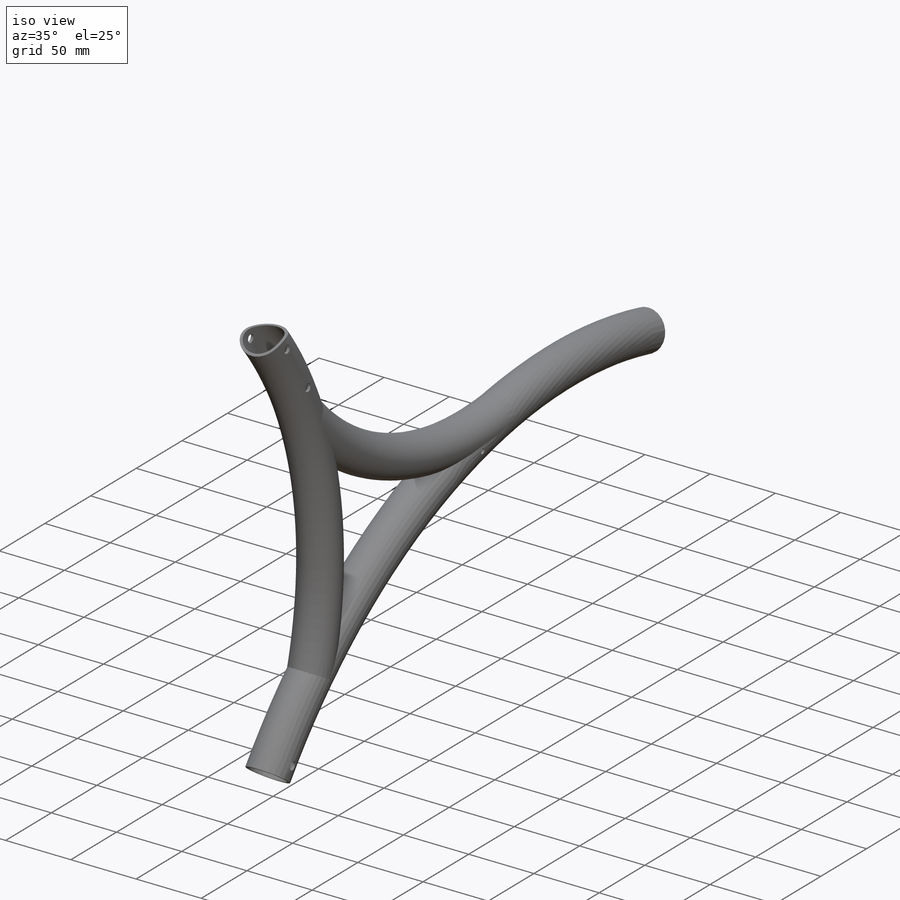
[diagram: iso view]
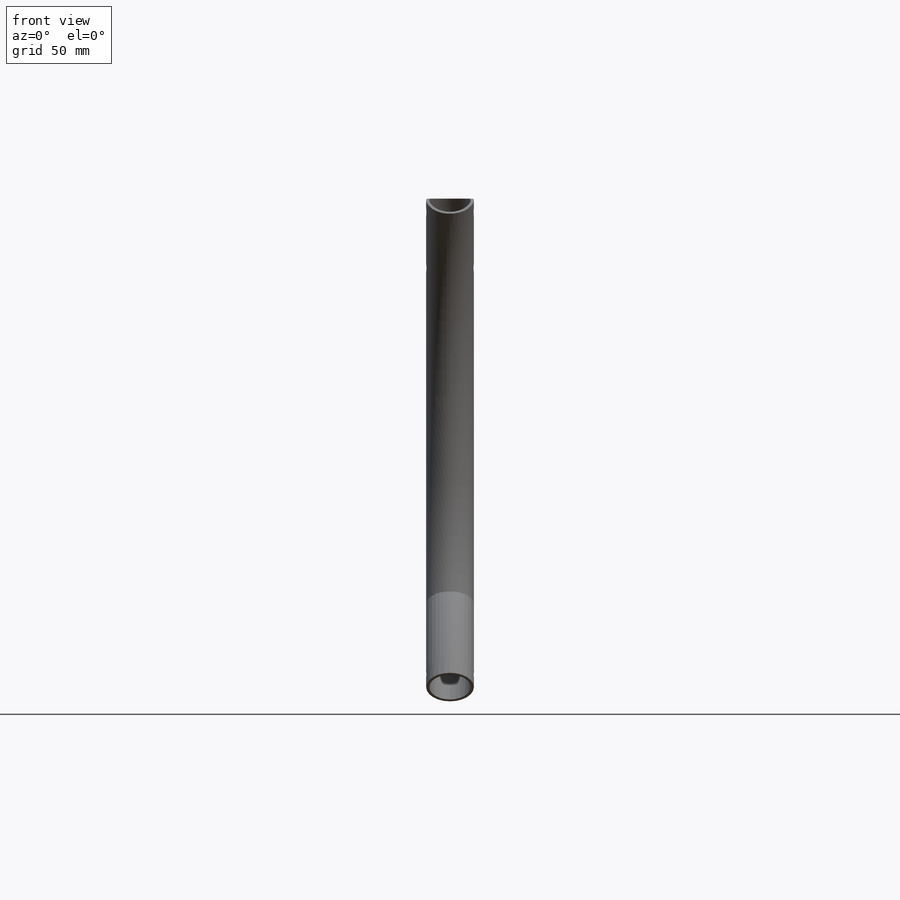
[diagram: front view]
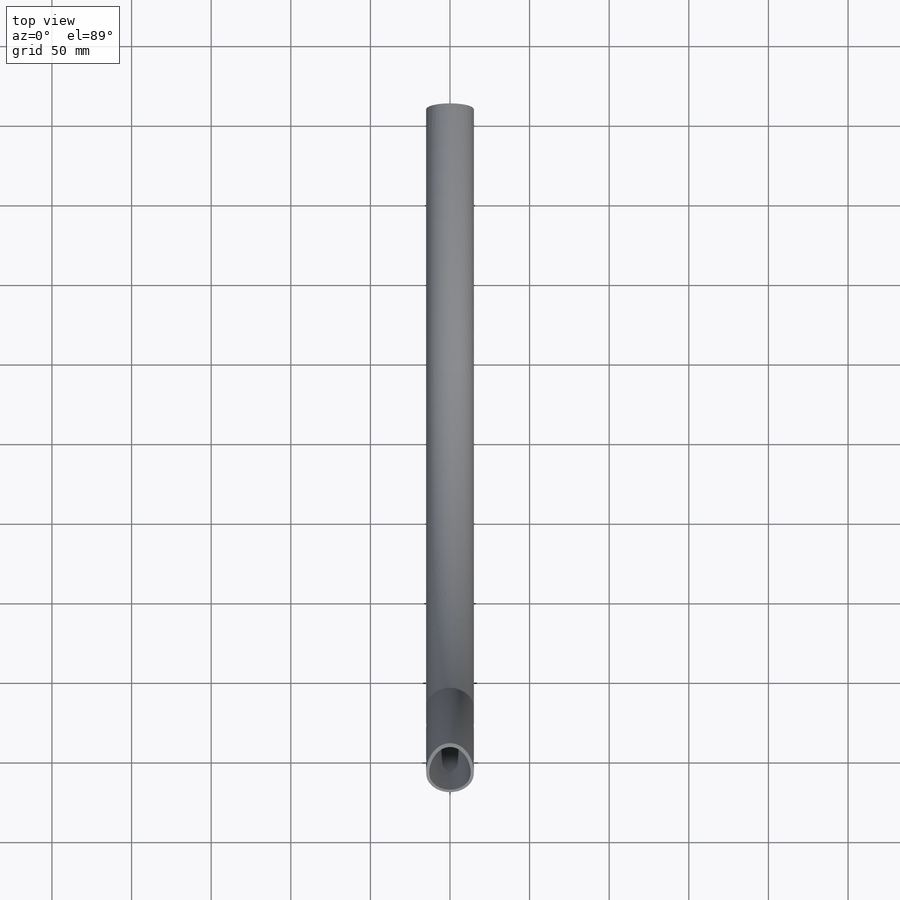
[diagram: top view]
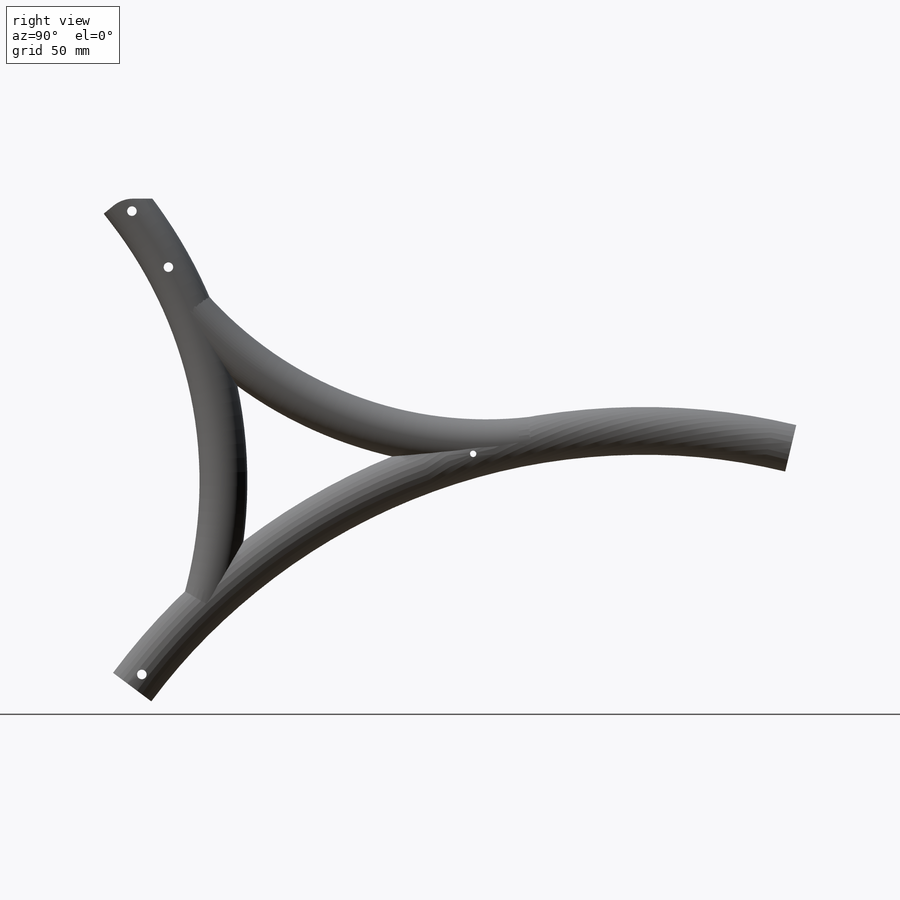
[diagram: right view]
SOLIDWORKS PART (.sldprt)
format: sldprt  version: not decoded by parser v0  size: 610,304 bytes
history: native  units: mm
features: sketch x9, plane x3, sweep x3, cut_extrude x2, material x1, fillet x1 (+13 scaffold rows collapsed)
feature tree (32):
  scaffold x13  (default folders/planes/origin — collapsed)
  material  "Material <not specified>"
  sketch  "Sketch1"  dims[D1=400.0mm D2=440.0mm D3=150.0mm]
  plane  "Plane1"
  sketch  "Sketch2"  dims[D1=2.0mm]
  sweep  "Sweep1"
  sketch  "Sketch5"  dims[c1.D1=280.0mm c1.D5=~3.055972mm c1.D2=260.0mm c1.D3=70.0mm c1.D4=420.0mm c2.D5=10.0mm c2.D6=42.0mm]
  plane  "Plane2"
  sketch  "Sketch6"  dims[D1=2.0mm]
  sweep  "Sweep2"
  sketch  "Sketch7"  dims[D1=250.0mm D2=230.0mm D3=70.0mm]
  plane  "Plane3"
  sketch  "Sketch8"  dims[D1=2.0mm]
  sweep  "Sweep3"
  sketch  "Sketch9"  dims[c1.D1=~3.919272mm c1.D3=~6.899606mm c1.D4=~5.873719mm c1.D5=6.0mm c2.D1=10.0mm c2.D2=42.0mm c2.D3=10.0mm c2.D4=260.0mm c2.D5=~245.379182mm c3.D4=250.0mm c3.D5=~263.015897mm]
  cut_extrude  "Cut-Extrude2"  [1 undecoded]
  sketch  "Sketch10"
  cut_extrude  "Cut-Extrude5"  [1 undecoded]
  fillet  "Fillet2"  Radius=20mm
  sketch  "3DSketch4"
decode coverage: 8 of 15 modeling features carry decoded parameters
note: ~ marks probable driven/reference dimensions
note: 2 parameter values undecoded
note: suppression state not decoded; provenance and decode notes live in map.json
